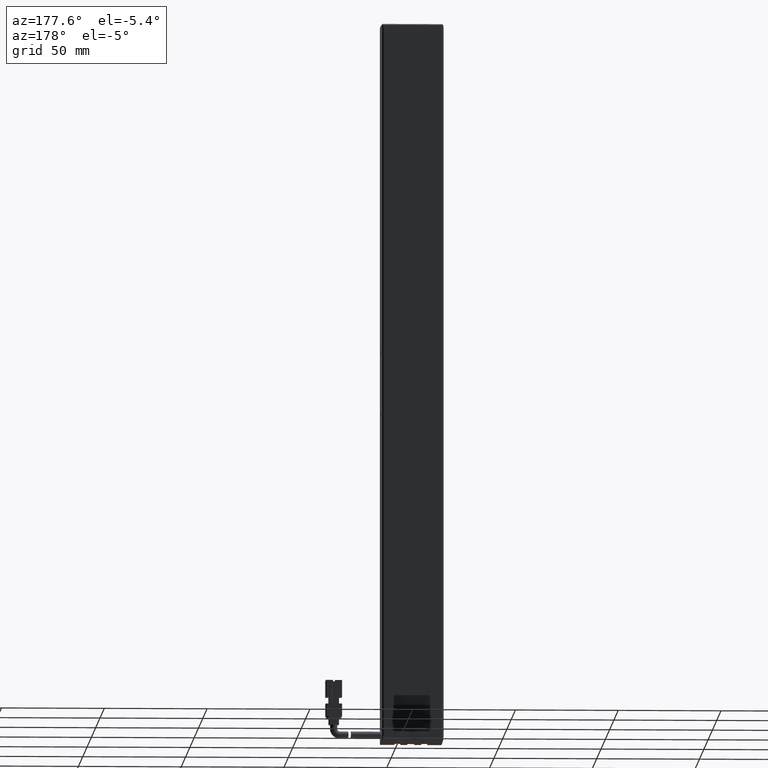
[diagram: clean part render]
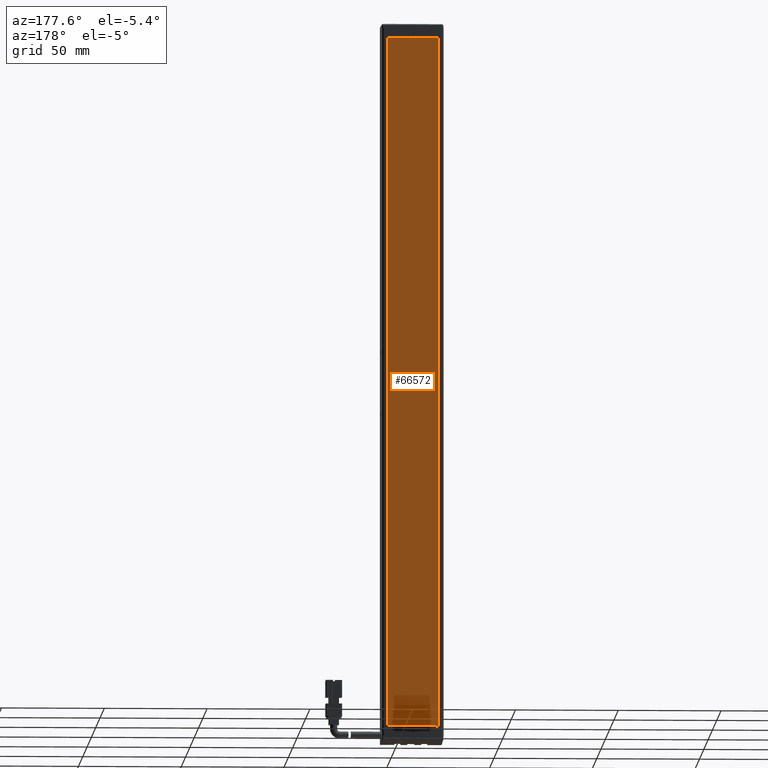
[diagram: same view with one face highlighted and labeled with its STEP entity id]
A machine part, auxiliary view. The second image highlights one B-rep face of the part: STEP entity #66572.
In plain terms, the highlighted planar face has unit normal (0, 1, 0).
Its self-contained STEP definition (entity closure, byte-faithful):
#2369 = CARTESIAN_POINT ( 'NONE',  ( 0.0000000000000000000, 34.29594479660387000, 0.0000000000000000000 ) ) ;
#6672 = DIRECTION ( 'NONE',  ( 1.000000000000000000, 0.0000000000000000000, 0.0000000000000000000 ) ) ;
#7369 = CARTESIAN_POINT ( 'NONE',  ( 53.32537974683541600, 34.29594479660387000, 53.15000000000005500 ) ) ;
#9844 = CARTESIAN_POINT ( 'NONE',  ( 53.32537974683541600, 34.29594479660387000, -282.8499999999999100 ) ) ;
#13988 = ORIENTED_EDGE ( 'NONE', *, *, #28494, .T. ) ;
#15963 = ORIENTED_EDGE ( 'NONE', *, *, #28212, .T. ) ;
#17689 = CARTESIAN_POINT ( 'NONE',  ( 53.32537974683541600, 34.29594479660387000, -282.8499999999999100 ) ) ;
#19053 = ORIENTED_EDGE ( 'NONE', *, *, #59471, .T. ) ;
#19477 = VERTEX_POINT ( 'NONE', #7369 ) ;
#21116 = LINE ( 'NONE', #47606, #48827 ) ;
#22824 = EDGE_CURVE ( 'NONE', #51384, #57571, #65093, .T. ) ;
#23514 = VECTOR ( 'NONE', #63124, 1000.000000000000000 ) ;
#28212 = EDGE_CURVE ( 'NONE', #57571, #19477, #51091, .T. ) ;
#28494 = EDGE_CURVE ( 'NONE', #30259, #51384, #53413, .T. ) ;
#28574 = DIRECTION ( 'NONE',  ( 0.0000000000000000000, -0.0000000000000000000, 1.000000000000000000 ) ) ;
#30259 = VERTEX_POINT ( 'NONE', #17689 ) ;
#33320 = CARTESIAN_POINT ( 'NONE',  ( 28.52537974683541600, 34.29594479660387000, 53.15000000000005500 ) ) ;
#35794 = CARTESIAN_POINT ( 'NONE',  ( 28.52537974683541600, 34.29594479660387000, 53.15000000000005500 ) ) ;
#36226 = FACE_OUTER_BOUND ( 'NONE', #62950, .T. ) ;
#44436 = CARTESIAN_POINT ( 'NONE',  ( 28.52537974683541600, 34.29594479660387000, -282.8499999999999100 ) ) ;
#47606 = CARTESIAN_POINT ( 'NONE',  ( 53.32537974683541600, 34.29594479660387000, 53.15000000000005500 ) ) ;
#48827 = VECTOR ( 'NONE', #52624, 1000.000000000000000 ) ;
#49308 = PLANE ( 'NONE',  #65144 ) ;
#49472 = VECTOR ( 'NONE', #6672, 1000.000000000000000 ) ;
#51091 = LINE ( 'NONE', #33320, #49472 ) ;
#51384 = VERTEX_POINT ( 'NONE', #44436 ) ;
#51540 = DIRECTION ( 'NONE',  ( -1.000000000000000000, 0.0000000000000000000, 0.0000000000000000000 ) ) ;
#52624 = DIRECTION ( 'NONE',  ( 0.0000000000000000000, 0.0000000000000000000, -1.000000000000000000 ) ) ;
#53413 = LINE ( 'NONE', #9844, #65720 ) ;
#57571 = VERTEX_POINT ( 'NONE', #35794 ) ;
#57841 = CARTESIAN_POINT ( 'NONE',  ( 28.52537974683541600, 34.29594479660387000, -282.8499999999999100 ) ) ;
#59471 = EDGE_CURVE ( 'NONE', #19477, #30259, #21116, .T. ) ;
#59768 = DIRECTION ( 'NONE',  ( 0.0000000000000000000, 1.000000000000000000, 0.0000000000000000000 ) ) ;
#62950 = EDGE_LOOP ( 'NONE', ( #19053, #13988, #66065, #15963 ) ) ;
#63124 = DIRECTION ( 'NONE',  ( 0.0000000000000000000, 0.0000000000000000000, 1.000000000000000000 ) ) ;
#65093 = LINE ( 'NONE', #57841, #23514 ) ;
#65144 = AXIS2_PLACEMENT_3D ( 'NONE', #2369, #59768, #28574 ) ;
#65720 = VECTOR ( 'NONE', #51540, 1000.000000000000000 ) ;
#66065 = ORIENTED_EDGE ( 'NONE', *, *, #22824, .T. ) ;
#66572 = ADVANCED_FACE ( 'NONE', ( #36226 ), #49308, .T. ) ;